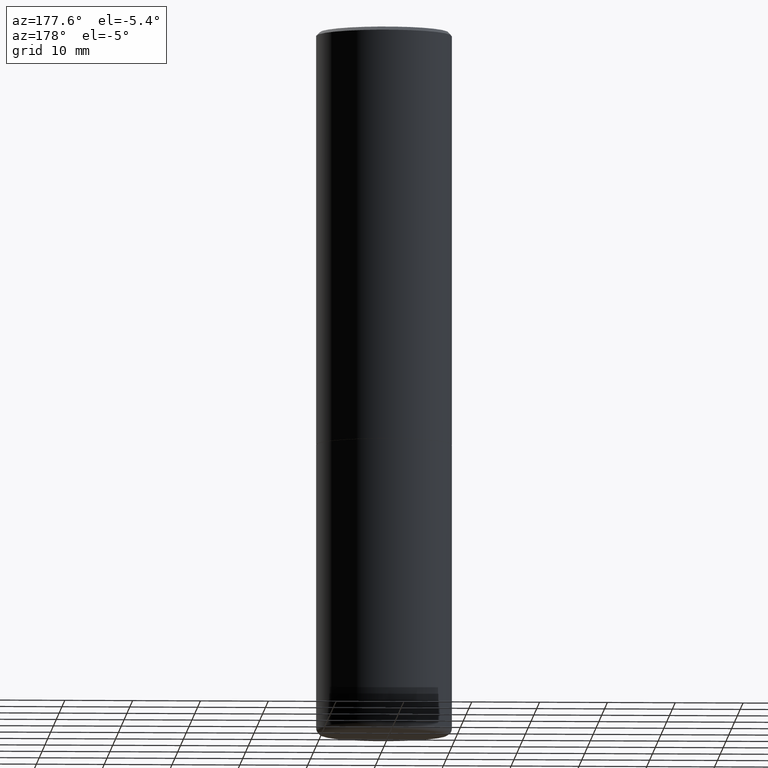
[diagram: clean part render]
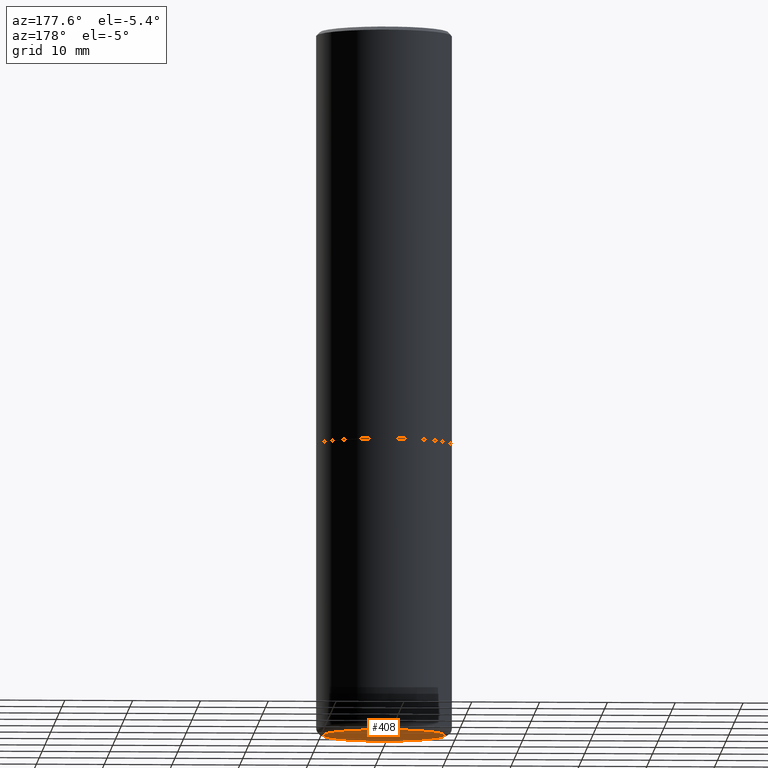
[diagram: same view with one face highlighted and labeled with its STEP entity id]
A machine part, auxiliary view. The second image highlights one B-rep face of the part: STEP entity #408.
In plain terms, the highlighted planar face has unit normal (0, -0, -1).
Its self-contained STEP definition (entity closure, byte-faithful):
#8 = CARTESIAN_POINT ( 'NONE',  ( 0.3543000000000000038, -1.676993401859750628E-14, -4.094500000000000028 ) ) ;
#24 = VERTEX_POINT ( 'NONE', #311 ) ;
#28 = EDGE_CURVE ( 'NONE', #236, #24, #294, .T. ) ;
#29 = DIRECTION ( 'NONE',  ( 2.438088387897960049E-29, -3.491481338843145188E-15, -1.000000000000000000 ) ) ;
#35 = EDGE_LOOP ( 'NONE', ( #200, #106 ) ) ;
#106 = ORIENTED_EDGE ( 'NONE', *, *, #134, .F. ) ;
#109 = AXIS2_PLACEMENT_3D ( 'NONE', #204, #170, #293 ) ;
#121 = DIRECTION ( 'NONE',  ( -1.000000000000000000, 6.982962677686265922E-15, -4.876176775795935793E-29 ) ) ;
#134 = EDGE_CURVE ( 'NONE', #24, #236, #184, .T. ) ;
#170 = DIRECTION ( 'NONE',  ( -2.445468806185136597E-29, 3.491481338843145583E-15, 1.000000000000000000 ) ) ;
#177 = DIRECTION ( 'NONE',  ( -2.445468806185136597E-29, 3.491481338843145583E-15, 1.000000000000000000 ) ) ;
#184 = CIRCLE ( 'NONE', #109, 0.3543000000000000038 ) ;
#200 = ORIENTED_EDGE ( 'NONE', *, *, #28, .F. ) ;
#204 = CARTESIAN_POINT ( 'NONE',  ( 1.001297202692504215E-28, -1.429587034189326149E-14, -4.094500000000000028 ) ) ;
#225 = AXIS2_PLACEMENT_3D ( 'NONE', #276, #177, #402 ) ;
#236 = VERTEX_POINT ( 'NONE', #8 ) ;
#276 = CARTESIAN_POINT ( 'NONE',  ( 1.001297202692504215E-28, -1.429587034189326149E-14, -4.094500000000000028 ) ) ;
#293 = DIRECTION ( 'NONE',  ( 1.000000000000000000, -6.982962677686266711E-15, 0.000000000000000000 ) ) ;
#294 = CIRCLE ( 'NONE', #225, 0.3543000000000000038 ) ;
#307 = PLANE ( 'NONE',  #317 ) ;
#311 = CARTESIAN_POINT ( 'NONE',  ( -0.3543000000000000038, -1.156965832777527483E-14, -4.094500000000000028 ) ) ;
#317 = AXIS2_PLACEMENT_3D ( 'NONE', #404, #29, #121 ) ;
#336 = FACE_OUTER_BOUND ( 'NONE', #35, .T. ) ;
#402 = DIRECTION ( 'NONE',  ( 1.000000000000000000, -6.982962677686266711E-15, 0.000000000000000000 ) ) ;
#404 = CARTESIAN_POINT ( 'NONE',  ( 1.001297202692504215E-28, -1.429587034189326149E-14, -4.094500000000000028 ) ) ;
#408 = ADVANCED_FACE ( 'NONE', ( #336 ), #307, .T. ) ;